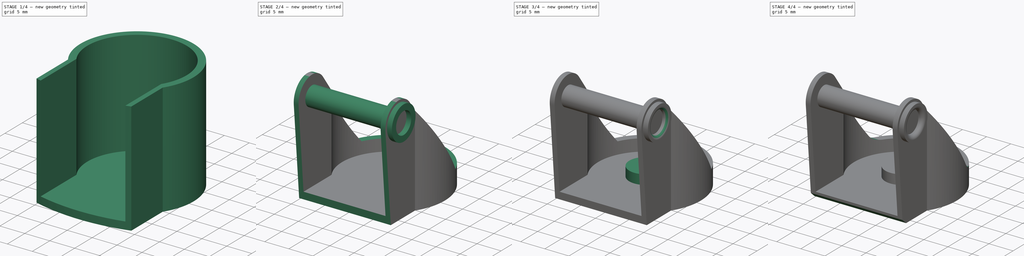
[diagram: build sequence overview — one tinted view per stage of 4, left to right]
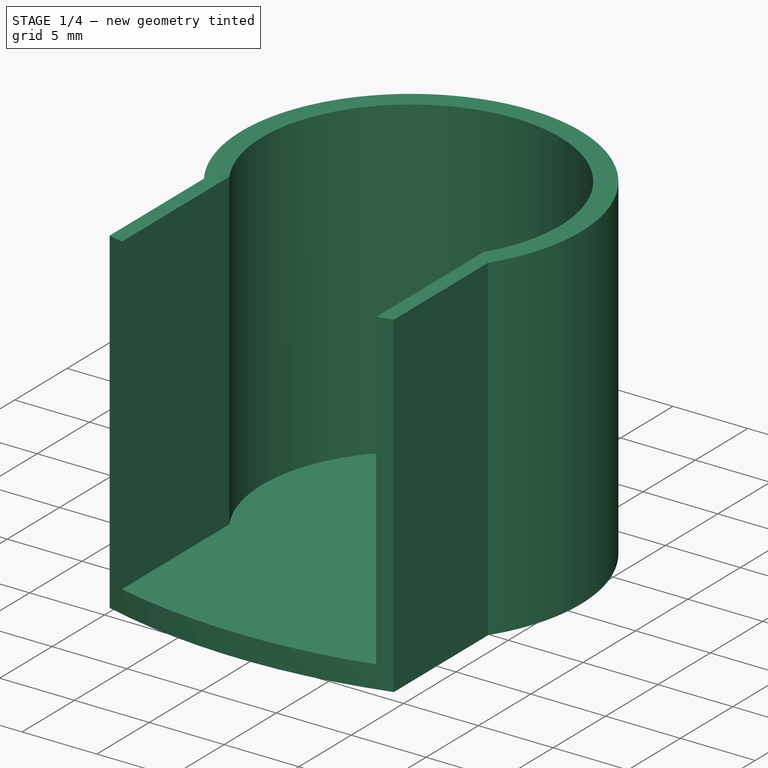
[diagram: stage 1 of 4 — iso view after this stage's code; geometry added in this stage tinted green]
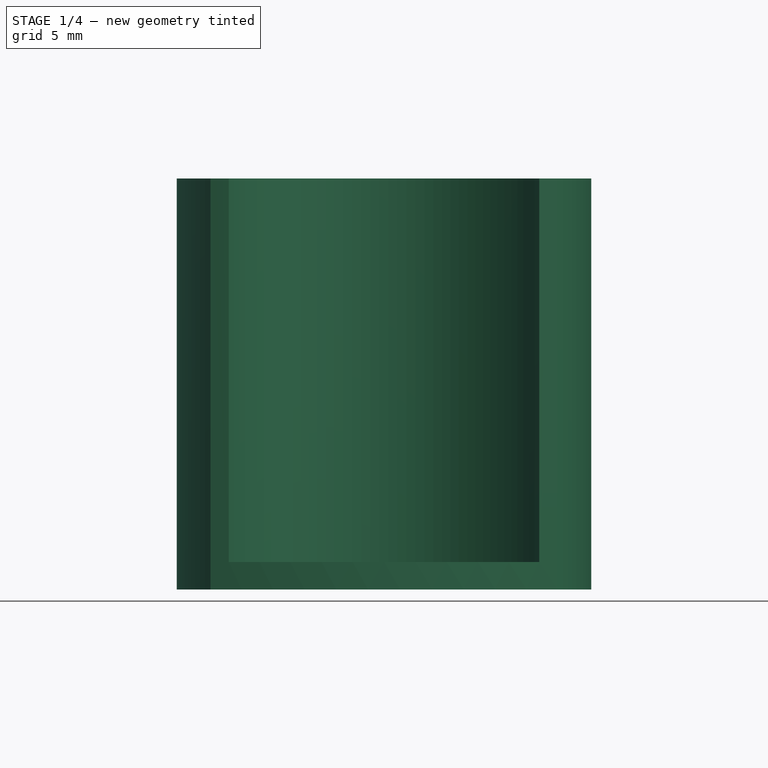
[diagram: stage 1 of 4 — front view after this stage's code; geometry added in this stage tinted green]
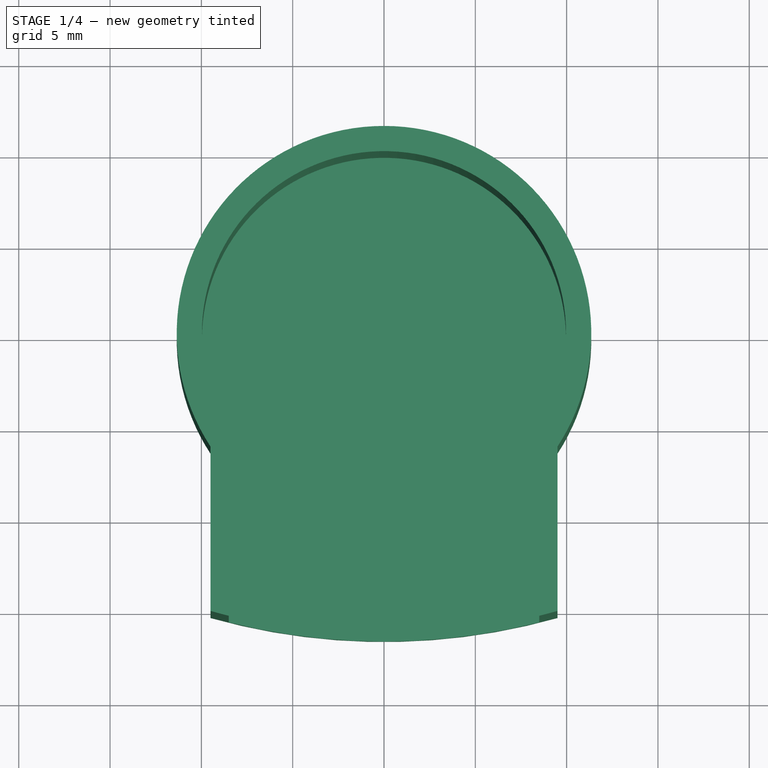
[diagram: stage 1 of 4 — top view after this stage's code; geometry added in this stage tinted green]
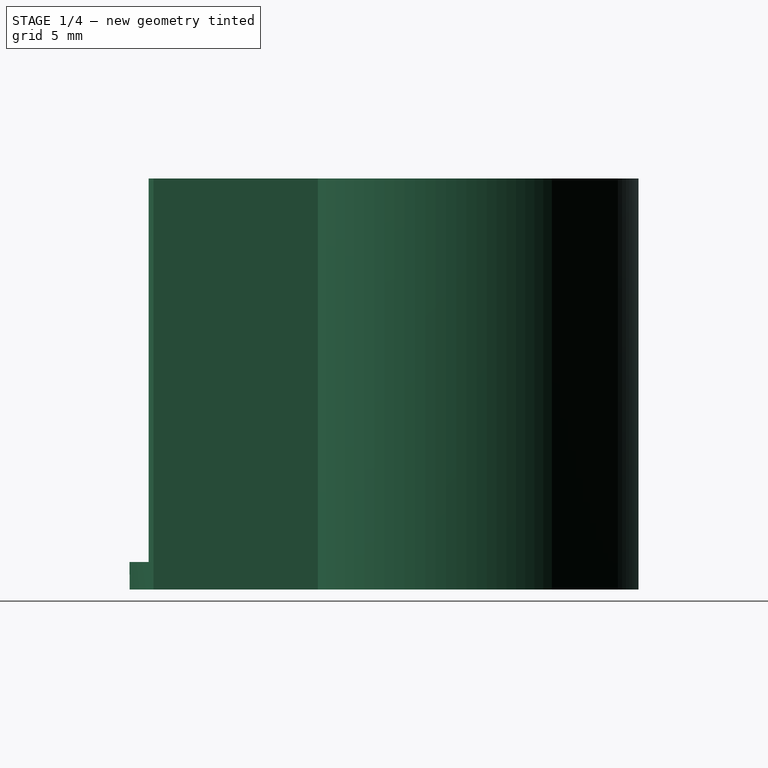
[diagram: stage 1 of 4 — right view after this stage's code; geometry added in this stage tinted green]
FCSTD DOCUMENT  (FreeCAD 1.0R39109 (Git))
Label: caster_wheel_p2
License: All rights reserved
LicenseURL: http://en.wikipedia.org/wiki/All_rights_reserved
objects: Sketcher::SketchObject×9, PartDesign::Pad×4, PartDesign::Pocket×2, PartDesign::Fillet×2, PartDesign::Line×1, PartDesign::Plane×1, PartDesign::Revolution×1, PartDesign::Chamfer×1, PartDesign::Body×1
note: 51 computed .brp shape members not serialized (recipe doc carries the construction recipe); baked Part::Feature solids carry a one-line shape summary decoded from their .brp

FEATURE [Sketcher::SketchObject] Sketch
  ArcFitTolerance = 1e-06
  AttachmentSupport = -> [XY_Plane]
  FullyConstrained = true
  MakeInternals = false
  MapMode = 5
  sketch-geometry (5):
    g0: Circle [constr] CenterX=0 CenterY=0 CenterZ=0 NormalX=0 NormalY=0 NormalZ=1 AngleXU=0 Radius=11.35
    g1: ArcOfCircle CenterX=0 CenterY=0 CenterZ=0 NormalX=0 NormalY=0 NormalZ=1 AngleXU=0 Radius=11.35 StartAngle=5.70417 EndAngle=10.0038
    g2: LineSegment StartX=-9.5 StartY=-6.21068 StartZ=0 EndX=-9.5 EndY=-15.2107 EndZ=0
    g3: LineSegment StartX=9.5 StartY=-6.21068 StartZ=0 EndX=9.5 EndY=-15.2107 EndZ=0
    g4: ArcOfCircle CenterX=5.8e-15 CenterY=18.4754 CenterZ=0 NormalX=0 NormalY=0 NormalZ=1 AngleXU=0 Radius=35 StartAngle=4.43751 EndAngle=4.98727
  constraints (15):
    c: Coincident(g0,g-1)
    c: Coincident(g1,g0)
    c: PointOnObject(g1,g0)
    c: Coincident(g2,g1)
    c: Vertical(g2)
    c: Coincident(g3,g1)
    c: Coincident(g4,g2)
    c: Coincident(g4,g3)
    c: Vertical(g3)
    c: Equal(g2,g3)
    c: Horizontal(g2,g3)
    c: DistanceX(g1,g1) = 19
    c: Radius(g1) = 11.35
    c: DistanceY(g3,g3) = 9
    c: Radius(g4) = 35
FEATURE [PartDesign::Pad] Pad  label="BasePad"
  Direction = (0,0,1)
  Length = 22.5
  Length2 = 10
  Profile = -> Sketch
  ReferenceAxis = -> Sketch [N_Axis]
  Refine = true
  Suppressed = false
  Type = 0
FEATURE [Sketcher::SketchObject] Sketch001
  ArcFitTolerance = 1e-06
  AttachmentSupport = -> [Pad]
  ExternalGeometry = -> [Pad]
  FullyConstrained = true
  MakeInternals = false
  MapMode = 5
  Placement = pos=(0,0,22.5) rot=(0,0,1;0rad)
  sketch-geometry (5):
    g0: ArcOfCircle CenterX=0 CenterY=0 CenterZ=0 NormalX=0 NormalY=0 NormalZ=1 AngleXU=0 Radius=9.97001 StartAngle=5.73325 EndAngle=9.97472
    g1: LineSegment StartX=-8.5 StartY=-5.21068 StartZ=0 EndX=-8.5 EndY=-15.4768 EndZ=0
    g2: LineSegment StartX=8.5 StartY=-5.21068 StartZ=0 EndX=8.5 EndY=-15.4768 EndZ=0
    g3: LineSegment [constr] StartX=8.5 StartY=-5.21068 StartZ=0 EndX=9.5 EndY=-6.21068 EndZ=0
    g4: ArcOfCircle CenterX=6.2e-15 CenterY=18.4754 CenterZ=0 NormalX=0 NormalY=0 NormalZ=1 AngleXU=0 Radius=35 StartAngle=4.46708 EndAngle=4.9577
  constraints (15):
    c: Coincident(g0,g-1)
    c: Coincident(g1,g0)
    c: Vertical(g1)
    c: Coincident(g2,g0)
    c: Vertical(g2)
    c: Horizontal(g0,g0)
    c: Coincident(g3,g0)
    c: Coincident(g3,g-6)
    c: Angle(g2,g3) = 0.785398
    c: Horizontal(g1,g2)
    c: PointOnObject(g2,g-5)
    c: Coincident(g4,g1)
    c: Coincident(g4,g2)
    c: Tangent(g4,g-5)
    c: DistanceX(g0,g3) = 1
FEATURE [PartDesign::Pocket] Pocket  label="EmptyPocket"
  BaseFeature = -> Pad
  Direction = (0,0,-1)
  Length = 21
  Length2 = 5
  Profile = -> Sketch001
  ReferenceAxis = -> Sketch001 [N_Axis]
  Refine = true
  Suppressed = false
  Type = 0
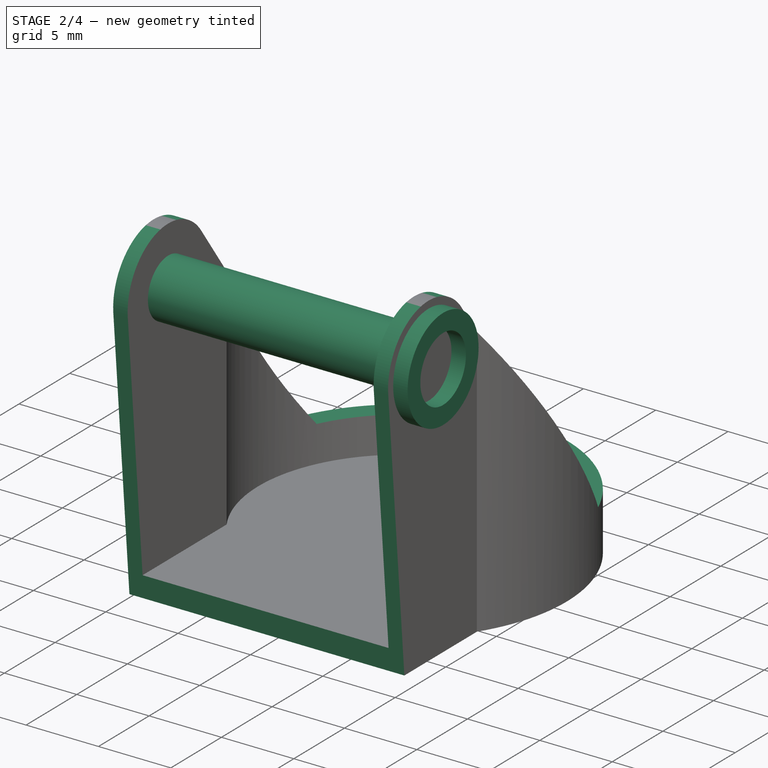
[diagram: stage 2 of 4 — iso view after this stage's code; geometry added in this stage tinted green]
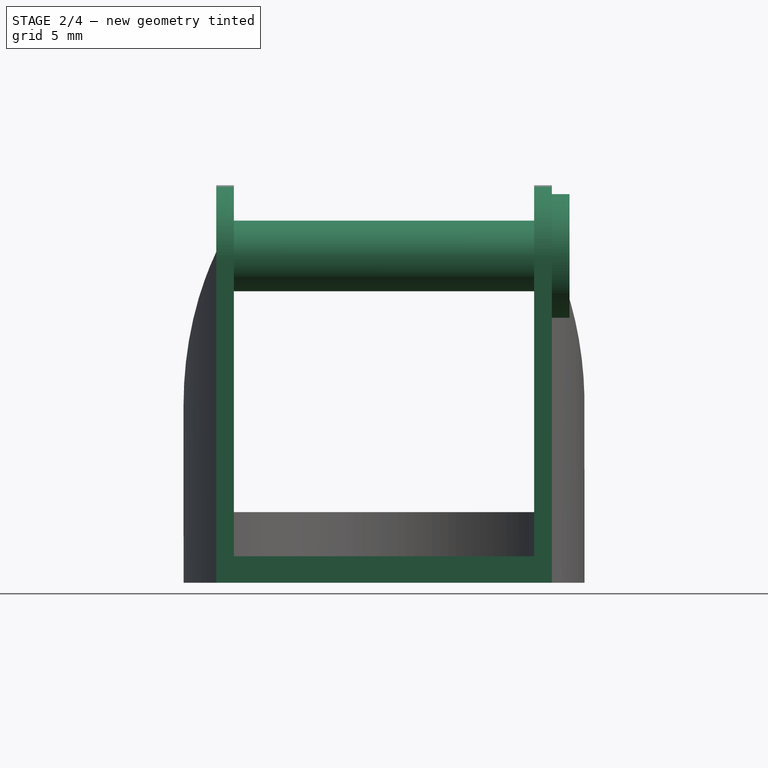
[diagram: stage 2 of 4 — front view after this stage's code; geometry added in this stage tinted green]
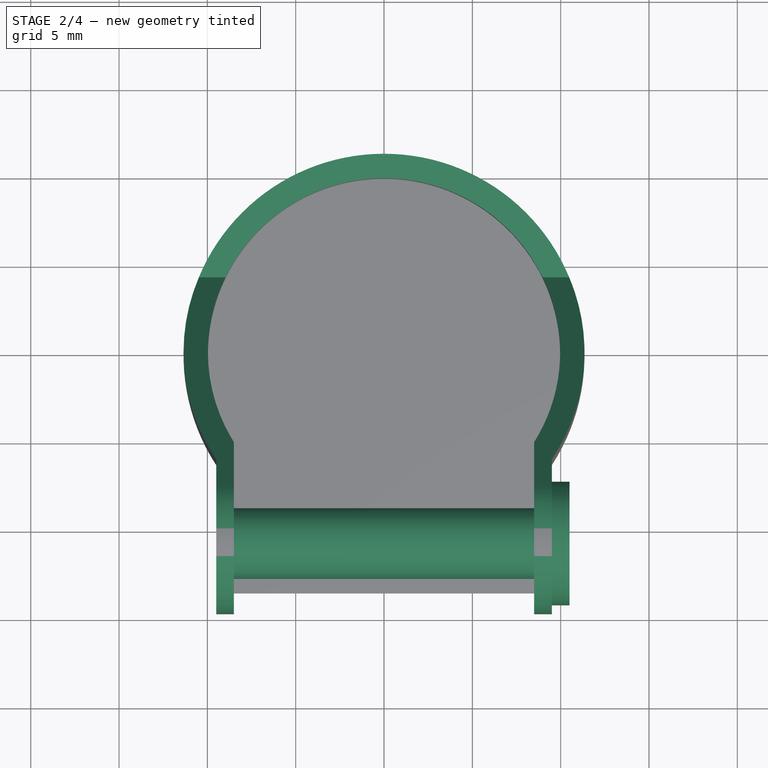
[diagram: stage 2 of 4 — top view after this stage's code; geometry added in this stage tinted green]
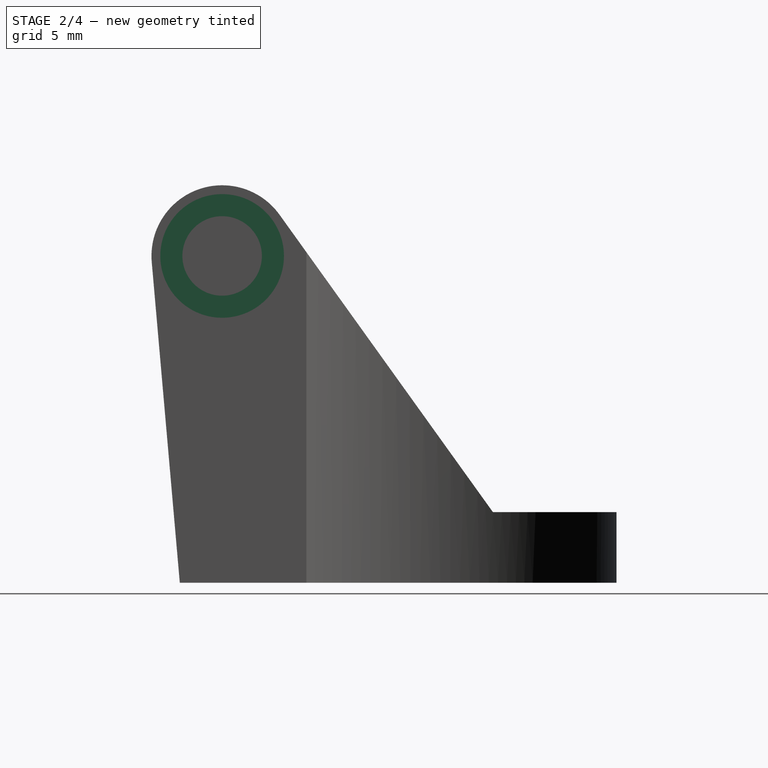
[diagram: stage 2 of 4 — right view after this stage's code; geometry added in this stage tinted green]
FEATURE [Sketcher::SketchObject] Sketch002
  ArcFitTolerance = 1e-06
  AttachmentSupport = -> [YZ_Plane]
  ExternalGeometry = -> [Pocket]
  FullyConstrained = true
  MakeInternals = false
  MapMode = 5
  Placement = pos=(0,0,0) rot=(0.57735,0.57735,0.57735;2.0944rad)
  sketch-geometry (10):
    g0: GeomPoint X=-10.9768 Y=18.5 Z=0
    g1: ArcOfCircle CenterX=-10.9768 CenterY=18.5 CenterZ=0 NormalX=0 NormalY=0 NormalZ=1 AngleXU=0 Radius=4 StartAngle=0.622373 EndAngle=3.22886
    g2: LineSegment [constr] StartX=-14.9616 StartY=18.1514 StartZ=0 EndX=-7.72681 EndY=20.8319 EndZ=0
    g3: LineSegment StartX=-14.9616 StartY=18.1514 StartZ=0 EndX=-13.3735 EndY=0 EndZ=0
    g4: LineSegment StartX=-13.3735 StartY=0 StartZ=0 EndX=-15.4768 EndY=0 EndZ=0
    g5: LineSegment StartX=-15.4768 StartY=0 StartZ=0 EndX=-15.4768 EndY=23 EndZ=0
    g6: LineSegment StartX=-15.4768 StartY=23 StartZ=0 EndX=11.35 EndY=23 EndZ=0
    g7: LineSegment StartX=11.35 StartY=23 StartZ=0 EndX=11.35 EndY=4 EndZ=0
    g8: LineSegment StartX=11.35 StartY=4 StartZ=0 EndX=4.35 EndY=4 EndZ=0
    g9: LineSegment StartX=4.35 StartY=4 StartZ=0 EndX=-7.72681 EndY=20.8319 EndZ=0
  constraints (26):
    c: Coincident(g1,g0)
    c: DistanceX(g-4,g0) = 4.5
    c: Radius(g1) = 4
    c: Tangent(g1,g-4)
    c: Coincident(g2,g1)
    c: Coincident(g2,g1)
    c: Tangent(g1,g3) = -1.5708
    c: Coincident(g3,g4)
    c: Coincident(g4,g5)
    c: Vertical(g5)
    c: Coincident(g5,g6)
    c: Horizontal(g6)
    c: Coincident(g6,g7)
    c: Vertical(g7)
    c: Coincident(g7,g8)
    c: Coincident(g8,g9)
    c: Tangent(g9,g1) = -1.5708
    c: Horizontal(g4)
    c: Angle(g3,g-4) = 1.48353
    c: DistanceY(g-4,g5) = 0.5
    c: Vertical(g-4,g5)
    c: Vertical(g6,g-5)
    c: Horizontal(g8)
    c: DistanceY(g3,g7) = 4
    c: DistanceX(g8,g8) = 7
    c: PointOnObject(g4,g-1)
FEATURE [PartDesign::Pocket] Pocket001  label="ExternalContourPocket"
  BaseFeature = -> Pocket
  Direction = (-1,0,0)
  Length = 15
  Length2 = 15
  Profile = -> Sketch002
  ReferenceAxis = -> Sketch002 [N_Axis]
  Refine = true
  Suppressed = false
  Type = 4
FEATURE [Sketcher::SketchObject] Sketch003
  ArcFitTolerance = 1e-06
  AttachmentSupport = -> [Pocket001]
  FullyConstrained = true
  MakeInternals = false
  MapMode = 5
  Placement = pos=(9.5,0,0) rot=(0.57735,0.57735,0.57735;2.0944rad)
FEATURE [Sketcher::SketchObject] Sketch004
  ArcFitTolerance = 1e-06
  AttachmentSupport = -> [Pocket001]
  ExternalGeometry = -> [Pocket001]
  FullyConstrained = true
  MakeInternals = false
  MapMode = 5
  Placement = pos=(8.5,0,0) rot=(0.57735,-0.57735,-0.57735;2.0944rad)
  sketch-geometry (1):
    g0: Circle CenterX=10.9768 CenterY=18.5 CenterZ=0 NormalX=0 NormalY=0 NormalZ=1 AngleXU=0 Radius=2
  constraints (2):
    c: Coincident(g0,g-3)
    c: Radius(g0) = 2
FEATURE [PartDesign::Pad] Pad001  label="AxisPad"
  BaseFeature = -> Pocket001
  Direction = (-1,0,0)
  Length = 10
  Length2 = 10
  Profile = -> Sketch004
  ReferenceAxis = -> Sketch004 [N_Axis]
  Refine = true
  Suppressed = false
  Type = 2
FEATURE [Sketcher::SketchObject] Sketch005
  ArcFitTolerance = 1e-06
  AttachmentSupport = -> [Pad001]
  ExternalGeometry = -> [Pad001]
  FullyConstrained = true
  MakeInternals = false
  MapMode = 5
  Placement = pos=(9.5,0,0) rot=(0.57735,0.57735,0.57735;2.0944rad)
  sketch-geometry (2):
    g0: Circle CenterX=-10.9768 CenterY=18.5 CenterZ=0 NormalX=0 NormalY=0 NormalZ=1 AngleXU=0 Radius=3.5
    g1: Circle CenterX=-10.9768 CenterY=18.5 CenterZ=0 NormalX=0 NormalY=0 NormalZ=1 AngleXU=0 Radius=2.25
  constraints (4):
    c: Coincident(g0,g-4)
    c: Coincident(g1,g0)
    c: Radius(g0) = 3.5
    c: Radius(g1) = 2.25
FEATURE [PartDesign::Pad] Pad002  label="FinishAxisPad"
  BaseFeature = -> Pad001
  Direction = (1,0,0)
  Length = 1
  Length2 = 10
  Profile = -> Sketch005
  ReferenceAxis = -> Sketch005 [N_Axis]
  Refine = true
  Suppressed = false
  Type = 0
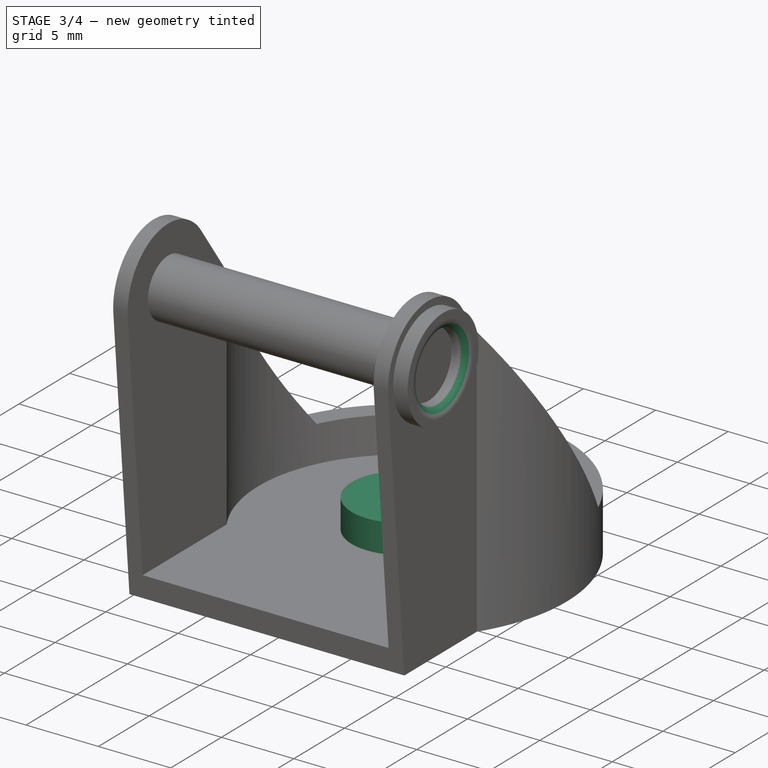
[diagram: stage 3 of 4 — iso view after this stage's code; geometry added in this stage tinted green]
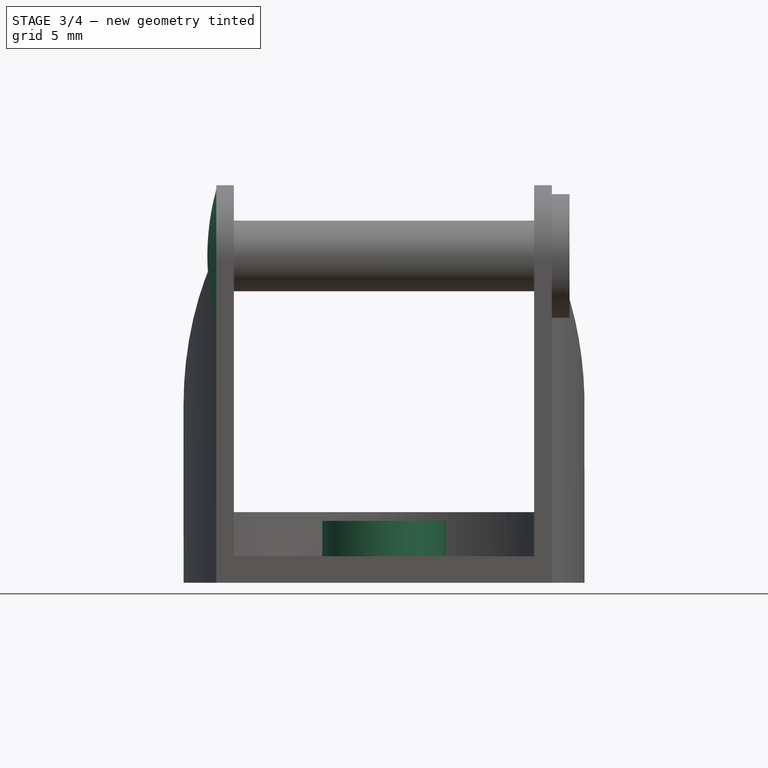
[diagram: stage 3 of 4 — front view after this stage's code; geometry added in this stage tinted green]
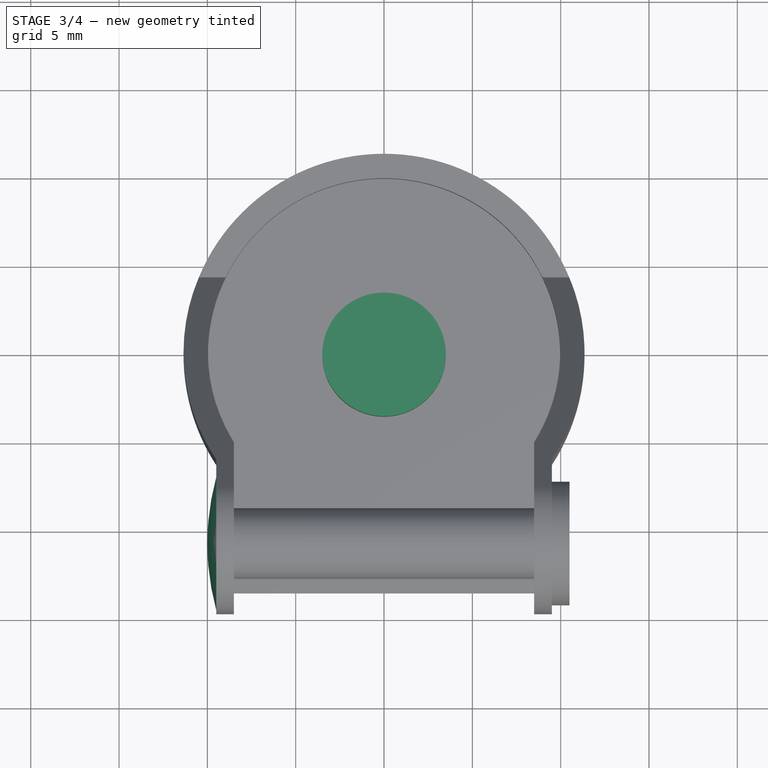
[diagram: stage 3 of 4 — top view after this stage's code; geometry added in this stage tinted green]
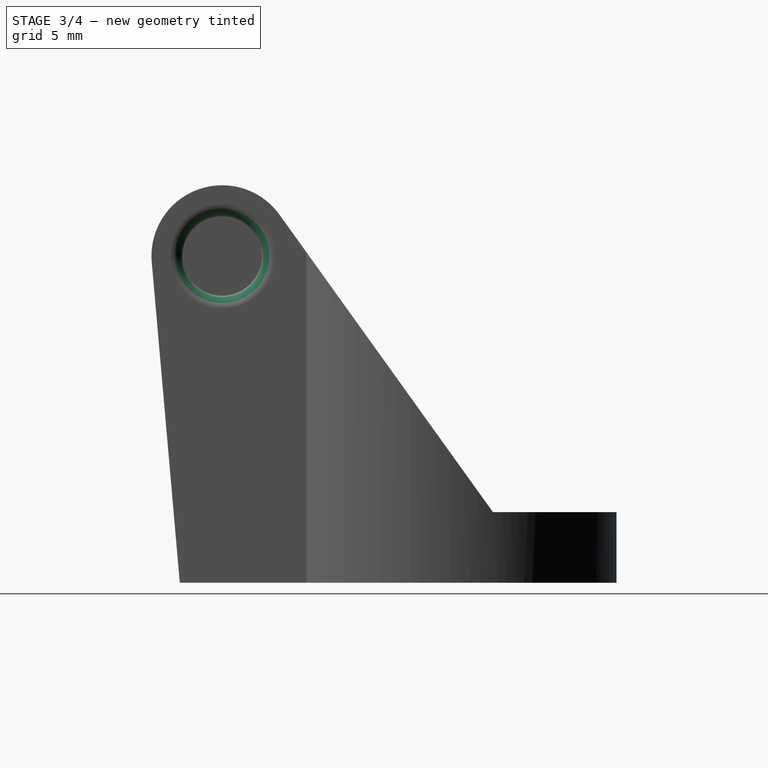
[diagram: stage 3 of 4 — right view after this stage's code; geometry added in this stage tinted green]
FEATURE [Sketcher::SketchObject] Sketch006
  ArcFitTolerance = 1e-06
  AttachmentSupport = -> [Pad002]
  ExternalGeometry = -> [Pad002]
  FullyConstrained = true
  MakeInternals = false
  MapMode = 5
  Placement = pos=(-9.5,0,0) rot=(0.57735,-0.57735,-0.57735;2.0944rad)
  sketch-geometry (1):
    g0: LineSegment StartX=10.9768 StartY=18.5 StartZ=0 EndX=10.9768 EndY=0 EndZ=0
  constraints (3):
    c: Coincident(g0,g-3)
    c: PointOnObject(g0,g-1)
    c: Vertical(g0)
FEATURE [PartDesign::Line] DatumLine
  AttacherType = Attacher::AttachEngineLine
  AttachmentSupport = -> [Sketch006,Pad002]
  Length = 20
  MapMode = 24
  Placement = pos=(-9.5,-10.9768,18.5) rot=(0.57735,0.57735,0.57735;2.0944rad)
  ResizeMode = 0
FEATURE [PartDesign::Plane] DatumPlane
  AttachmentSupport = -> [XZ_Plane,Sketch006]
  Length = 60
  MapMode = 53
  Placement = pos=(0,-10.9768,-2.4e-15) rot=(1,0,0;1.5708rad)
  ResizeMode = 0
  Width = 60
FEATURE [Sketcher::SketchObject] Sketch007
  ArcFitTolerance = 1e-06
  AttachmentSupport = -> [DatumPlane]
  ExternalGeometry = -> [DatumLine,Pad002]
  FullyConstrained = true
  MakeInternals = false
  MapMode = 5
  Placement = pos=(0,-10.9768,-2.4e-15) rot=(1,0,0;1.5708rad)
  sketch-geometry (4):
    g0: LineSegment StartX=-9.5 StartY=18.5 StartZ=0 EndX=-9.5 EndY=22.25 EndZ=0
    g1: LineSegment StartX=-9.5 StartY=18.5 StartZ=0 EndX=-10 EndY=18.5 EndZ=0
    g2: ArcOfCircle CenterX=4.3124 CenterY=18.5 CenterZ=0 NormalX=0 NormalY=0 NormalZ=1 AngleXU=0 Radius=14.3124 StartAngle=2.87649 EndAngle=3.14159
    g3: LineSegment [constr] StartX=-10 StartY=18.5 StartZ=0 EndX=-10 EndY=17.5 EndZ=0
  constraints (13):
    c: PointOnObject(g0,g-4)
    c: PointOnObject(g0,g-4)
    c: Coincident(g1,g0)
    c: Horizontal(g1)
    c: Coincident(g2,g1)
    c: Coincident(g2,g0)
    c: Coincident(g3,g1)
    c: Vertical(g3)
    c: DistanceY(g3,g3) = 1
    c: PointOnObject(g0,g-3)
    c: DistanceX(g1,g1) = 0.5
    c: DistanceY(g0,g0) = 3.75
    c: Tangent(g2,g3)
FEATURE [PartDesign::Revolution] Revolution  label="FinishAxisRevolution"
  Angle = 360
  Angle2 = 60
  Axis = (1,0,0)
  Base = (-9.5,-10.9768,18.5)
  BaseFeature = -> Pad002
  Profile = -> Sketch007
  ReferenceAxis = -> DatumLine
  Refine = true
  Suppressed = false
  Type = 0
FEATURE [Sketcher::SketchObject] Sketch008
  ArcFitTolerance = 1e-06
  AttachmentSupport = -> [Revolution]
  FullyConstrained = true
  MakeInternals = false
  MapMode = 5
  Placement = pos=(0,0,1.5) rot=(0,0,1;0rad)
  sketch-geometry (1):
    g0: Circle CenterX=0 CenterY=0 CenterZ=0 NormalX=0 NormalY=0 NormalZ=1 AngleXU=0 Radius=3.5
  constraints (2):
    c: Coincident(g0,g-1)
    c: Radius(g0) = 3.5
FEATURE [PartDesign::Pad] Pad003  label="ReferenceAxisPad"
  BaseFeature = -> Revolution
  Direction = (0,0,1)
  Length = 2
  Length2 = 10
  Profile = -> Sketch008
  ReferenceAxis = -> Sketch008 [N_Axis]
  Refine = true
  Suppressed = false
  Type = 0
FEATURE [PartDesign::Fillet] Fillet  label="AxisFillet"
  Base = -> Pad003 [Edge54]
  BaseFeature = -> Pad003
  Radius = 0.75
  Refine = true
  SupportTransform = false
  Suppressed = false
  UseAllEdges = false
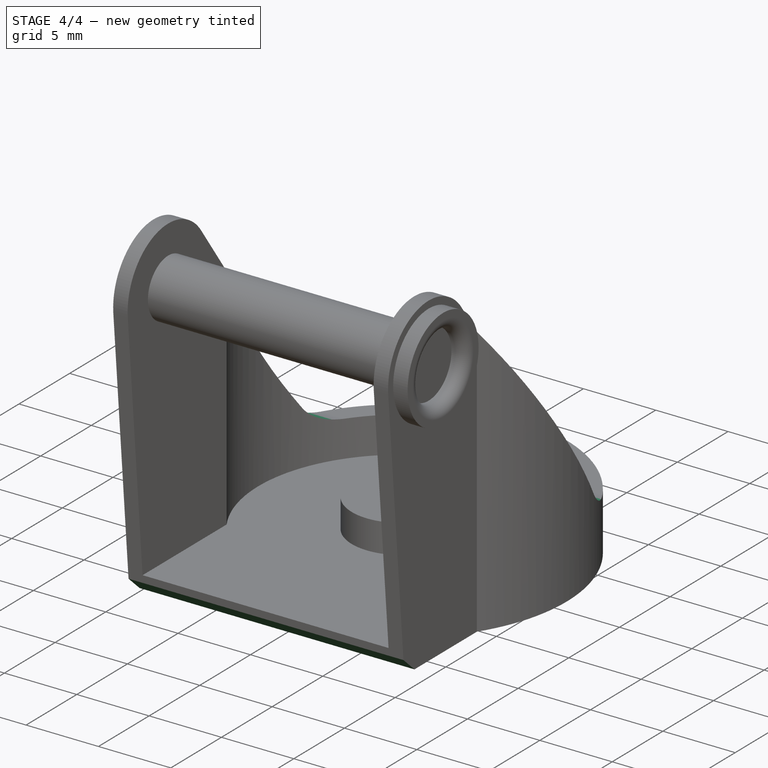
[diagram: stage 4 of 4 — iso view after this stage's code; geometry added in this stage tinted green]
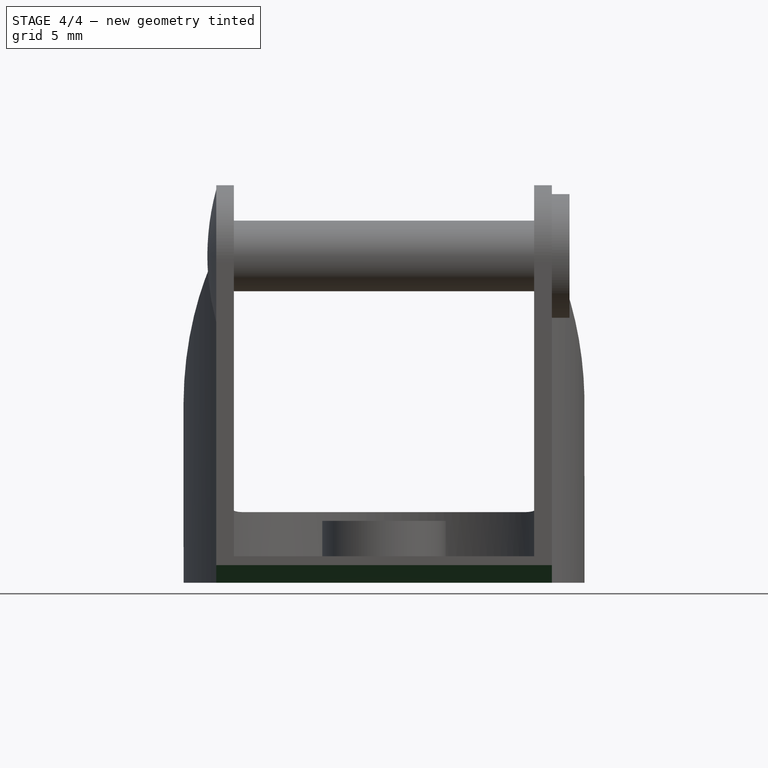
[diagram: stage 4 of 4 — front view after this stage's code; geometry added in this stage tinted green]
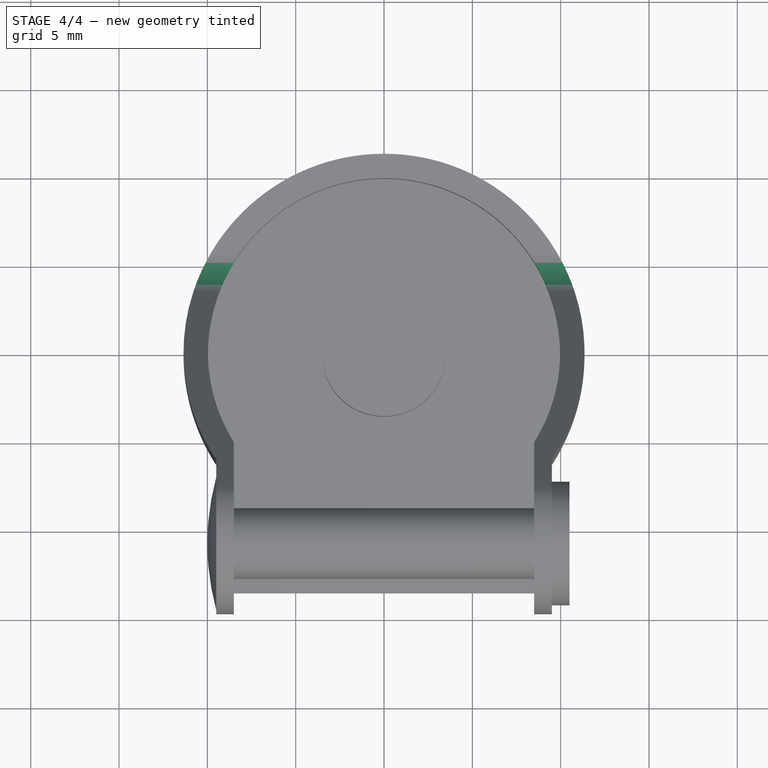
[diagram: stage 4 of 4 — top view after this stage's code; geometry added in this stage tinted green]
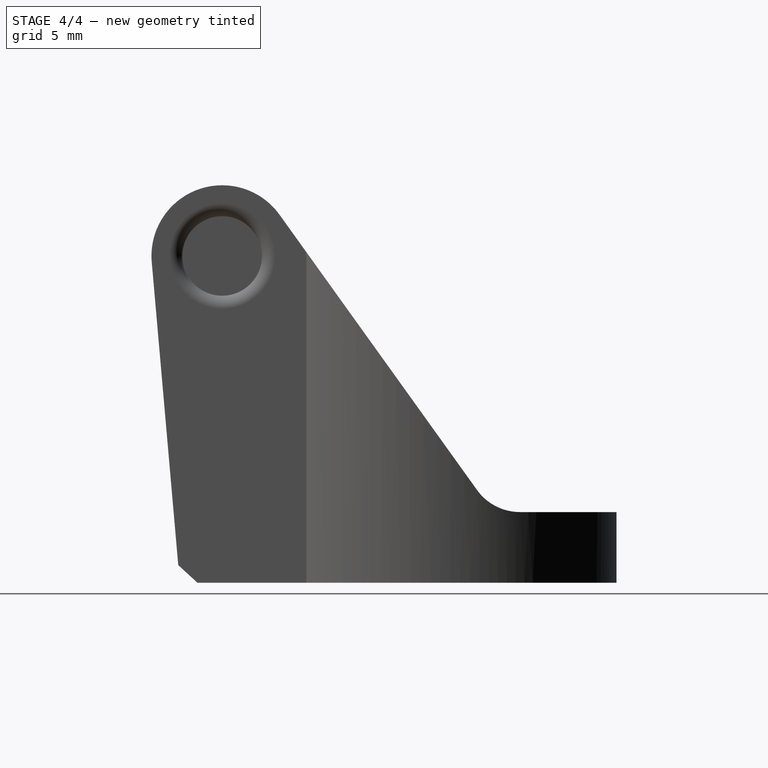
[diagram: stage 4 of 4 — right view after this stage's code; geometry added in this stage tinted green]
FEATURE [PartDesign::Fillet] Fillet001  label="StructuralFillet"
  Base = -> Fillet [Edge42,Edge32]
  BaseFeature = -> Fillet
  Radius = 3
  Refine = true
  SupportTransform = false
  Suppressed = false
  UseAllEdges = false
FEATURE [PartDesign::Chamfer] Chamfer  label="StructuralChampfer"
  Angle = 45
  Base = -> Fillet001 [Edge25]
  BaseFeature = -> Fillet001
  ChamferType = 0
  FlipDirection = false
  Refine = true
  Size = 1
  Size2 = 1
  SupportTransform = false
  Suppressed = false
  UseAllEdges = false
FEATURE [PartDesign::Body] Body  label="CasterWheelP2"
  AllowCompound = false
  Group = -> [Sketch,Pad,Sketch001,Pocket,Sketch002,Pocket001,Sketch003,Sketch004,Pad001,Sketch005,Pad002,Sketch006,DatumLine,DatumPlane,Sketch007,Revolution,Sketch008,Pad003,Fillet,Fillet001,Chamfer]
  Origin = -> Origin
  Tip = -> Chamfer
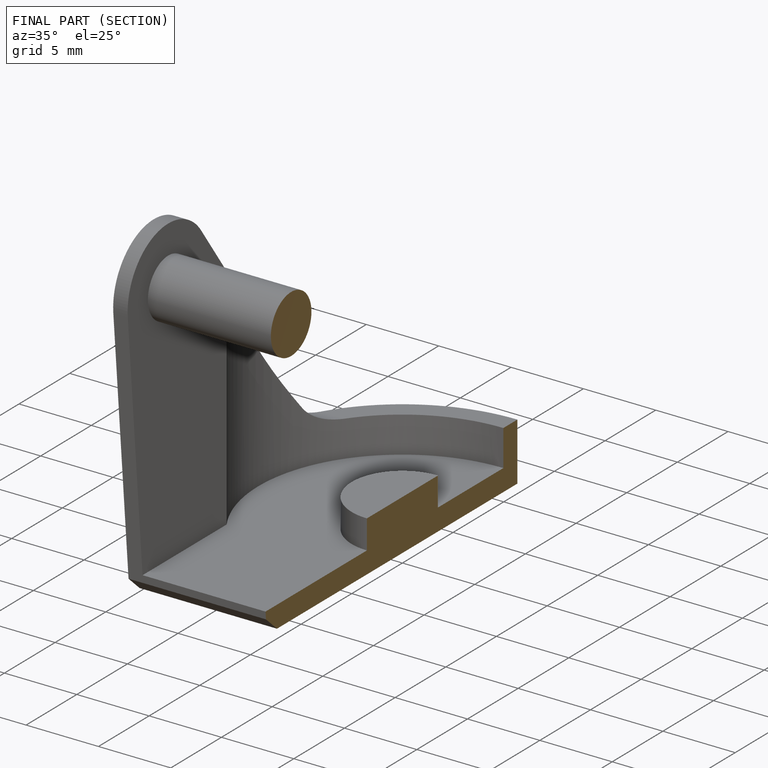
[diagram: finished part — half-section view (interior)]
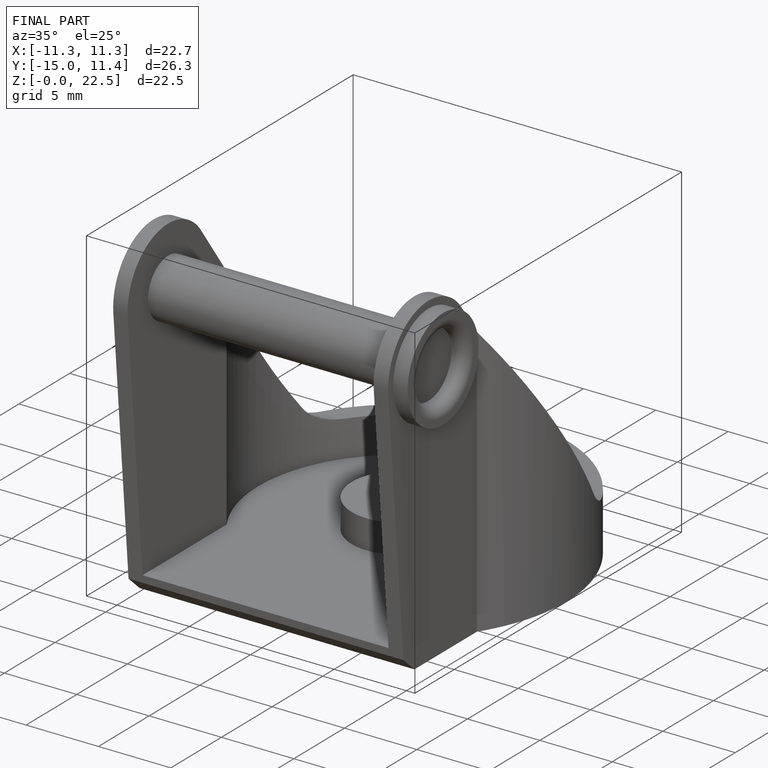
[diagram: finished part — iso view with bounding-box wireframe]
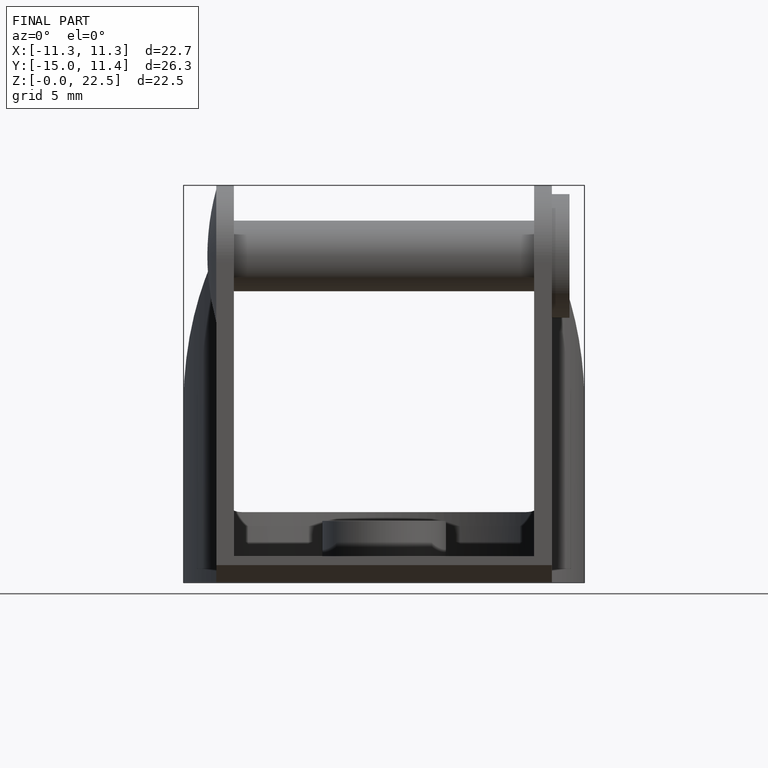
[diagram: finished part — front view with bounding-box wireframe]
